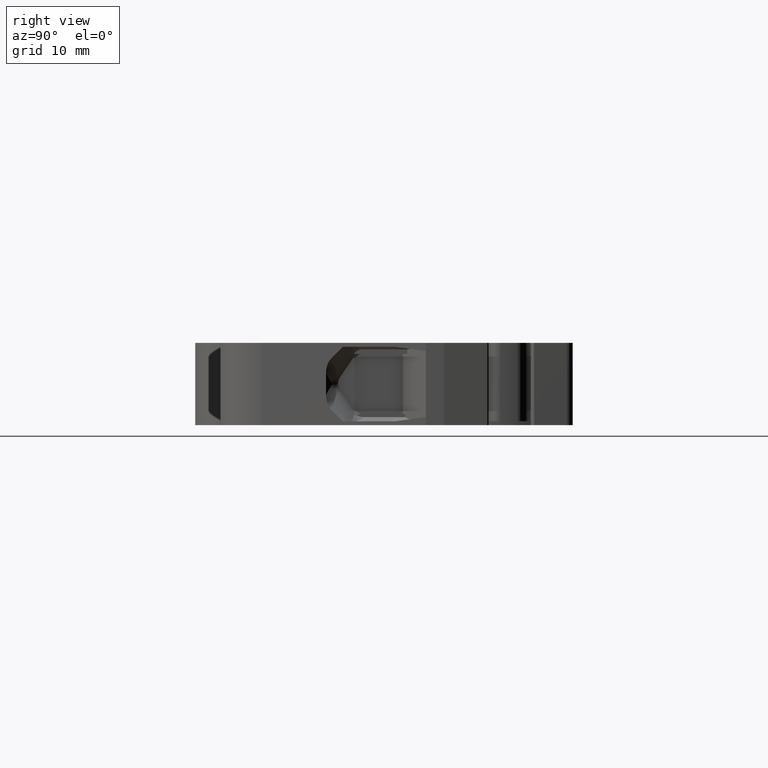
[diagram: clean part render]
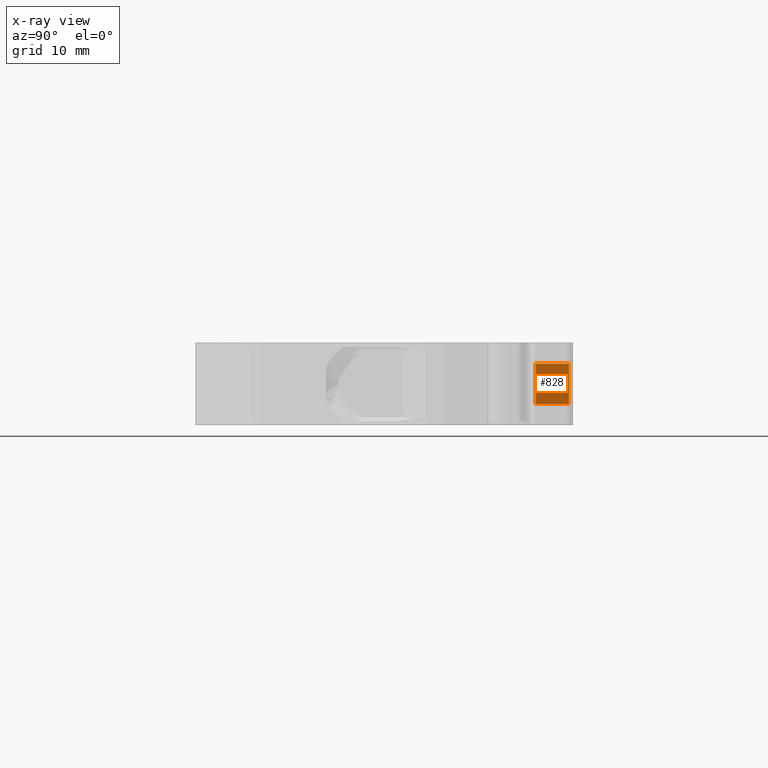
[diagram: x-ray — body ghosted, one internal face saturated and labeled with its STEP entity id]
A machine part, right view, then the same camera in x-ray: the body is ghosted and one INTERNAL B-rep face — a face not visible from any outside direction — is saturated and labeled: STEP entity #828.
In plain terms, the highlighted planar face has unit normal (1, 0, 0).
Its self-contained STEP definition (entity closure, byte-faithful):
#514 = ORIENTED_EDGE ( 'NONE', *, *, #6064, .T. ) ;
#601 = VECTOR ( 'NONE', #11589, 1000.000000000000000 ) ;
#828 = ADVANCED_FACE ( 'NONE', ( #10847 ), #10915, .F. ) ;
#1133 = ORIENTED_EDGE ( 'NONE', *, *, #2094, .T. ) ;
#1438 = VERTEX_POINT ( 'NONE', #8759 ) ;
#1868 = CARTESIAN_POINT ( 'NONE',  ( -192.5779073307309943, 96.98180938189860001, 6.100000000000000533 ) ) ;
#1995 = LINE ( 'NONE', #1868, #4494 ) ;
#2094 = EDGE_CURVE ( 'NONE', #7020, #11640, #7161, .T. ) ;
#2522 = DIRECTION ( 'NONE',  ( 0.0000000000000000000, 0.0000000000000000000, 1.000000000000000000 ) ) ;
#2581 = DIRECTION ( 'NONE',  ( 0.0000000000000000000, 0.0000000000000000000, -1.000000000000000000 ) ) ;
#3488 = CARTESIAN_POINT ( 'NONE',  ( -192.5779073307309943, 93.67037655609151159, 6.599999999999999645 ) ) ;
#3542 = CARTESIAN_POINT ( 'NONE',  ( -192.5779073307309943, 93.18659681709509357, 6.599999999999999645 ) ) ;
#3608 = DIRECTION ( 'NONE',  ( 1.000000000000000000, 0.0000000000000000000, 0.0000000000000000000 ) ) ;
#3633 = CARTESIAN_POINT ( 'NONE',  ( -192.5779073307309943, 96.98180938189860001, 6.100000000000000533 ) ) ;
#4224 = CARTESIAN_POINT ( 'NONE',  ( -192.5779073307309943, 93.18659681709509357, 2.100000000000000089 ) ) ;
#4421 = VERTEX_POINT ( 'NONE', #7970 ) ;
#4494 = VECTOR ( 'NONE', #9233, 1000.000000000000000 ) ;
#5618 = VECTOR ( 'NONE', #5728, 1000.000000000000000 ) ;
#5728 = DIRECTION ( 'NONE',  ( 0.0000000000000000000, 0.0000000000000000000, -1.000000000000000000 ) ) ;
#6064 = EDGE_CURVE ( 'NONE', #4421, #1438, #10612, .T. ) ;
#6228 = AXIS2_PLACEMENT_3D ( 'NONE', #3542, #3608, #2581 ) ;
#6977 = EDGE_LOOP ( 'NONE', ( #7989, #514, #7838, #1133 ) ) ;
#7020 = VERTEX_POINT ( 'NONE', #3633 ) ;
#7161 = LINE ( 'NONE', #10851, #5618 ) ;
#7310 = EDGE_CURVE ( 'NONE', #1438, #7020, #1995, .T. ) ;
#7838 = ORIENTED_EDGE ( 'NONE', *, *, #7310, .T. ) ;
#7970 = CARTESIAN_POINT ( 'NONE',  ( -192.5779073307309943, 93.67037655609151159, 2.100000000000000089 ) ) ;
#7989 = ORIENTED_EDGE ( 'NONE', *, *, #11450, .T. ) ;
#8585 = VECTOR ( 'NONE', #2522, 1000.000000000000000 ) ;
#8759 = CARTESIAN_POINT ( 'NONE',  ( -192.5779073307309943, 93.67037655609151159, 6.100000000000000533 ) ) ;
#9082 = CARTESIAN_POINT ( 'NONE',  ( -192.5779073307309943, 96.98180938189860001, 2.100000000000000089 ) ) ;
#9105 = LINE ( 'NONE', #4224, #601 ) ;
#9233 = DIRECTION ( 'NONE',  ( -0.0000000000000000000, 1.000000000000000000, -0.0000000000000000000 ) ) ;
#10612 = LINE ( 'NONE', #3488, #8585 ) ;
#10847 = FACE_OUTER_BOUND ( 'NONE', #6977, .T. ) ;
#10851 = CARTESIAN_POINT ( 'NONE',  ( -192.5779073307309943, 96.98180938189860001, 6.599999999999999645 ) ) ;
#10915 = PLANE ( 'NONE',  #6228 ) ;
#11450 = EDGE_CURVE ( 'NONE', #11640, #4421, #9105, .T. ) ;
#11589 = DIRECTION ( 'NONE',  ( 0.0000000000000000000, -1.000000000000000000, 0.0000000000000000000 ) ) ;
#11640 = VERTEX_POINT ( 'NONE', #9082 ) ;